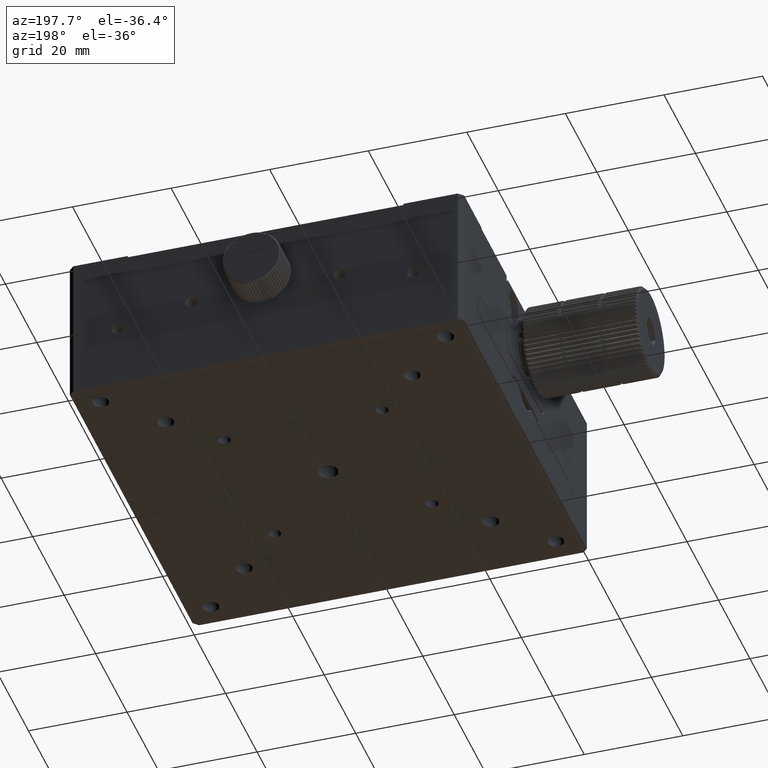
[diagram: clean part render]
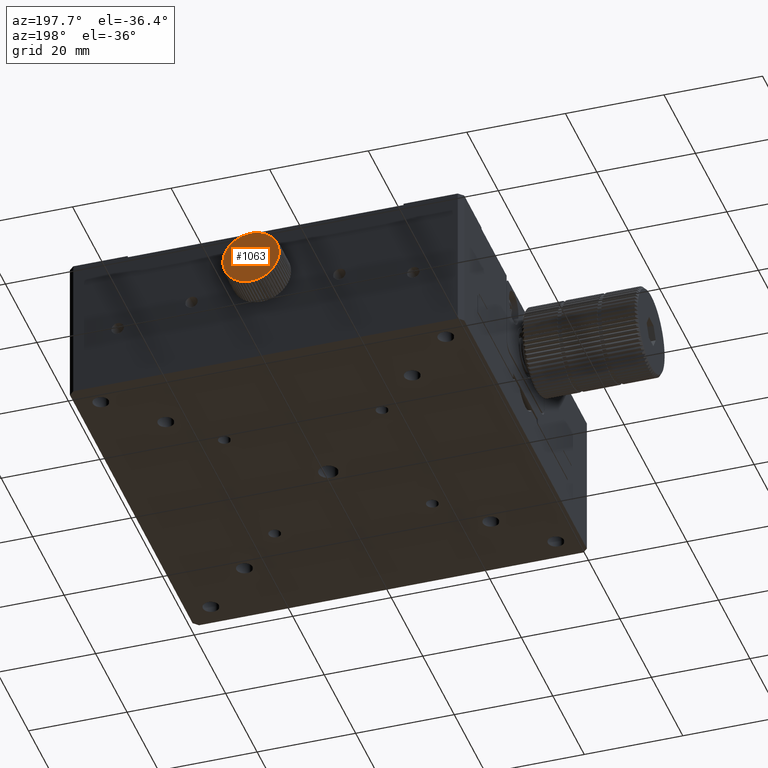
[diagram: same view with one face highlighted and labeled with its STEP entity id]
A machine part, auxiliary view. The second image highlights one B-rep face of the part: STEP entity #1063.
In plain terms, the highlighted planar face has unit normal (0, -1, -0).
Its self-contained STEP definition (entity closure, byte-faithful):
#15 = CARTESIAN_POINT ( 'NONE',  ( -3.295974604355933479E-14, 49.21547005369575345, 117.0000000000000142 ) ) ;
#40 = CIRCLE ( 'NONE', #73895, 5.700000000021077540 ) ;
#138 = ORIENTED_EDGE ( 'NONE', *, *, #67885, .F. ) ;
#441 = CARTESIAN_POINT ( 'NONE',  ( -3.295974604355933479E-14, 49.21547005369575345, 117.0000000000000142 ) ) ;
#475 = VERTEX_POINT ( 'NONE', #33123 ) ;
#776 = CARTESIAN_POINT ( 'NONE',  ( -2.850000000010580070, 49.21547005383691697, 112.0636551984104727 ) ) ;
#1063 = ADVANCED_FACE ( 'NONE', ( #55999 ), #22411, .F. ) ;
#1137 = EDGE_CURVE ( 'NONE', #20089, #19444, #70598, .T. ) ;
#1247 = VERTEX_POINT ( 'NONE', #43737 ) ;
#1286 = CARTESIAN_POINT ( 'NONE',  ( -3.295974604355933479E-14, 49.21547005369575345, 117.0000000000000142 ) ) ;
#1356 = CARTESIAN_POINT ( 'NONE',  ( -3.295974604355933479E-14, 49.21547005369575345, 117.0000000000000142 ) ) ;
#1431 = CARTESIAN_POINT ( 'NONE',  ( -1.185096637665645991, 49.21547005383691697, 111.4245586757967175 ) ) ;
#1480 = VERTEX_POINT ( 'NONE', #1431 ) ;
#1830 = CARTESIAN_POINT ( 'NONE',  ( -3.295974604355933479E-14, 49.21547005369575345, 117.0000000000000142 ) ) ;
#2011 = ORIENTED_EDGE ( 'NONE', *, *, #66572, .F. ) ;
#2190 = CIRCLE ( 'NONE', #52876, 5.700000000021077540 ) ;
#2241 = CARTESIAN_POINT ( 'NONE',  ( 1.761396867943604283, 49.21547005383691697, 111.5789778570975699 ) ) ;
#2316 = EDGE_CURVE ( 'NONE', #68036, #50976, #36948, .T. ) ;
#2616 = EDGE_CURVE ( 'NONE', #60832, #52253, #36997, .T. ) ;
#2804 = CIRCLE ( 'NONE', #15847, 5.700000000021077540 ) ;
#2825 = CARTESIAN_POINT ( 'NONE',  ( -4.936344801589581444, 49.21547005383691697, 114.1499999999894897 ) ) ;
#3027 = VERTEX_POINT ( 'NONE', #35831 ) ;
#3534 = CARTESIAN_POINT ( 'NONE',  ( -4.611396867954267620, 49.21547005383691697, 120.3503759380795373 ) ) ;
#3540 = VERTEX_POINT ( 'NONE', #84194 ) ;
#3661 = EDGE_CURVE ( 'NONE', #33772, #29005, #77681, .T. ) ;
#3873 = DIRECTION ( 'NONE',  ( 0.000000000000000000, -1.000000000000000000, 0.000000000000000000 ) ) ;
#4258 = VERTEX_POINT ( 'NONE', #5341 ) ;
#4641 = CIRCLE ( 'NONE', #7554, 5.700000000021077540 ) ;
#4800 = CARTESIAN_POINT ( 'NONE',  ( -3.295974604355933479E-14, 49.21547005369575345, 117.0000000000000142 ) ) ;
#4855 = DIRECTION ( 'NONE',  ( 0.000000000000000000, 0.000000000000000000, -1.000000000000000000 ) ) ;
#4999 = DIRECTION ( 'NONE',  ( 0.000000000000000000, 0.000000000000000000, -1.000000000000000000 ) ) ;
#5027 = AXIS2_PLACEMENT_3D ( 'NONE', #38844, #32032, #80095 ) ;
#5180 = CARTESIAN_POINT ( 'NONE',  ( -3.295974604355933479E-14, 49.21547005369575345, 117.0000000000000142 ) ) ;
#5341 = CARTESIAN_POINT ( 'NONE',  ( -5.421022142902465646, 49.21547005383691697, 115.2386031320563262 ) ) ;
#5958 = EDGE_LOOP ( 'NONE', ( #64832, #79781, #89134, #65612, #87406, #51672, #70289, #48681, #74099, #14855, #66999, #65947, #24735, #70253, #39059, #83210, #9593, #31207, #52139, #48653, #39106, #66420, #52746, #39293, #48898, #29490, #59251, #40221, #24063, #9944, #2011, #61209, #19017, #60717, #76765, #33267, #23488, #85706, #64948, #49008, #35555, #44732, #11385, #26327, #26124, #63445, #9382, #61115, #15510, #22226, #44771, #60814, #41838, #38951, #138, #23126, #33485, #26438, #39264, #80003 ) ) ;
#6506 = DIRECTION ( 'NONE',  ( 0.000000000000000000, -1.000000000000000000, 0.000000000000000000 ) ) ;
#6595 = CIRCLE ( 'NONE', #87737, 5.700000000021077540 ) ;
#6604 = CIRCLE ( 'NONE', #47259, 5.700000000021077540 ) ;
#6719 = DIRECTION ( 'NONE',  ( 0.000000000000000000, 0.000000000000000000, -1.000000000000000000 ) ) ;
#6887 = AXIS2_PLACEMENT_3D ( 'NONE', #441, #84772, #48979 ) ;
#6955 = CARTESIAN_POINT ( 'NONE',  ( -3.295974604355933479E-14, 49.21547005369575345, 117.0000000000000142 ) ) ;
#7554 = AXIS2_PLACEMENT_3D ( 'NONE', #28796, #56898, #19398 ) ;
#7813 = AXIS2_PLACEMENT_3D ( 'NONE', #84662, #22539, #28467 ) ;
#8016 = CARTESIAN_POINT ( 'NONE',  ( 5.575441324203262106, 49.21547005383691697, 115.8149033623343485 ) ) ;
#8035 = CARTESIAN_POINT ( 'NONE',  ( -3.295974604355933479E-14, 49.21547005369575345, 117.0000000000000142 ) ) ;
#8400 = AXIS2_PLACEMENT_3D ( 'NONE', #31204, #32093, #74238 ) ;
#8410 = EDGE_CURVE ( 'NONE', #4258, #28345, #2804, .T. ) ;
#8525 = DIRECTION ( 'NONE',  ( 0.000000000000000000, 0.000000000000000000, -1.000000000000000000 ) ) ;
#8588 = CIRCLE ( 'NONE', #33230, 5.700000000021077540 ) ;
#8676 = AXIS2_PLACEMENT_3D ( 'NONE', #81868, #34262, #76848 ) ;
#9134 = EDGE_CURVE ( 'NONE', #77552, #57588, #59338, .T. ) ;
#9344 = VERTEX_POINT ( 'NONE', #89758 ) ;
#9382 = ORIENTED_EDGE ( 'NONE', *, *, #70851, .F. ) ;
#9583 = EDGE_CURVE ( 'NONE', #78209, #56767, #40, .T. ) ;
#9593 = ORIENTED_EDGE ( 'NONE', *, *, #81758, .F. ) ;
#9720 = DIRECTION ( 'NONE',  ( 0.000000000000000000, -1.000000000000000000, 0.000000000000000000 ) ) ;
#9893 = AXIS2_PLACEMENT_3D ( 'NONE', #25477, #66324, #73082 ) ;
#9944 = ORIENTED_EDGE ( 'NONE', *, *, #2316, .F. ) ;
#10537 = CIRCLE ( 'NONE', #43865, 5.700000000021077540 ) ;
#10565 = DIRECTION ( 'NONE',  ( 0.000000000000000000, 0.000000000000000000, -1.000000000000000000 ) ) ;
#10606 = DIRECTION ( 'NONE',  ( 0.000000000000000000, 0.000000000000000000, -1.000000000000000000 ) ) ;
#10718 = CARTESIAN_POINT ( 'NONE',  ( -3.295974604355933479E-14, 49.21547005369575345, 117.0000000000000142 ) ) ;
#10730 = VERTEX_POINT ( 'NONE', #52983 ) ;
#11385 = ORIENTED_EDGE ( 'NONE', *, *, #82985, .F. ) ;
#11484 = CARTESIAN_POINT ( 'NONE',  ( -3.295974604355933479E-14, 49.21547005369575345, 117.0000000000000142 ) ) ;
#11909 = CARTESIAN_POINT ( 'NONE',  ( -3.295974604355933479E-14, 49.21547005369575345, 117.0000000000000142 ) ) ;
#12016 = CARTESIAN_POINT ( 'NONE',  ( 4.936344801589498843, 49.21547005383691697, 114.1499999999894328 ) ) ;
#12165 = EDGE_CURVE ( 'NONE', #64103, #68966, #26377, .T. ) ;
#12345 = DIRECTION ( 'NONE',  ( 0.000000000000000000, -1.000000000000000000, 0.000000000000000000 ) ) ;
#12406 = CARTESIAN_POINT ( 'NONE',  ( -3.295974604355933479E-14, 49.21547005369575345, 117.0000000000000142 ) ) ;
#12816 = EDGE_CURVE ( 'NONE', #1480, #26804, #4641, .T. ) ;
#13263 = EDGE_CURVE ( 'NONE', #68966, #20422, #39531, .T. ) ;
#13335 = CARTESIAN_POINT ( 'NONE',  ( -5.207209108582119939, 49.21547005383691697, 114.6816011344594131 ) ) ;
#13363 = DIRECTION ( 'NONE',  ( 0.000000000000000000, -1.000000000000000000, 0.000000000000000000 ) ) ;
#13388 = DIRECTION ( 'NONE',  ( 0.000000000000000000, -1.000000000000000000, 0.000000000000000000 ) ) ;
#13496 = EDGE_CURVE ( 'NONE', #57588, #20529, #10537, .T. ) ;
#13655 = AXIS2_PLACEMENT_3D ( 'NONE', #88954, #41346, #27272 ) ;
#13854 = CIRCLE ( 'NONE', #58577, 5.700000000021077540 ) ;
#13905 = AXIS2_PLACEMENT_3D ( 'NONE', #33472, #40726, #61130 ) ;
#14461 = DIRECTION ( 'NONE',  ( 0.000000000000000000, -1.000000000000000000, 0.000000000000000000 ) ) ;
#14673 = DIRECTION ( 'NONE',  ( 0.000000000000000000, -1.000000000000000000, 0.000000000000000000 ) ) ;
#14855 = ORIENTED_EDGE ( 'NONE', *, *, #71145, .F. ) ;
#14873 = DIRECTION ( 'NONE',  ( 0.000000000000000000, -1.000000000000000000, 0.000000000000000000 ) ) ;
#15089 = AXIS2_PLACEMENT_3D ( 'NONE', #15, #70767, #63075 ) ;
#15475 = VERTEX_POINT ( 'NONE', #27393 ) ;
#15510 = ORIENTED_EDGE ( 'NONE', *, *, #40482, .F. ) ;
#15725 = DIRECTION ( 'NONE',  ( 0.000000000000000000, -1.000000000000000000, 0.000000000000000000 ) ) ;
#15847 = AXIS2_PLACEMENT_3D ( 'NONE', #58862, #59290, #86936 ) ;
#15913 = EDGE_CURVE ( 'NONE', #25590, #20535, #86093, .T. ) ;
#16195 = AXIS2_PLACEMENT_3D ( 'NONE', #50983, #36068, #63739 ) ;
#16639 = EDGE_CURVE ( 'NONE', #69520, #60191, #2190, .T. ) ;
#16640 = CARTESIAN_POINT ( 'NONE',  ( -3.814044456259602089, 49.21547005383691697, 121.2359255052368354 ) ) ;
#16814 = CIRCLE ( 'NONE', #60265, 5.700000000021077540 ) ;
#17028 = CARTESIAN_POINT ( 'NONE',  ( 1.185096637665507213, 49.21547005383691697, 111.4245586757966890 ) ) ;
#17068 = CIRCLE ( 'NONE', #6887, 5.700000000021077540 ) ;
#17306 = EDGE_CURVE ( 'NONE', #24675, #52331, #18188, .T. ) ;
#17477 = CIRCLE ( 'NONE', #68210, 5.700000000021077540 ) ;
#18025 = VERTEX_POINT ( 'NONE', #24508 ) ;
#18188 = CIRCLE ( 'NONE', #29813, 5.700000000021077540 ) ;
#18500 = CARTESIAN_POINT ( 'NONE',  ( -2.318398865540638454, 49.21547005383691697, 122.2072091085821199 ) ) ;
#18790 = DIRECTION ( 'NONE',  ( 0.000000000000000000, 0.000000000000000000, -1.000000000000000000 ) ) ;
#18861 = CIRCLE ( 'NONE', #69570, 5.700000000021077540 ) ;
#19017 = ORIENTED_EDGE ( 'NONE', *, *, #3661, .F. ) ;
#19178 = DIRECTION ( 'NONE',  ( 0.000000000000000000, -1.000000000000000000, 0.000000000000000000 ) ) ;
#19335 = DIRECTION ( 'NONE',  ( 0.000000000000000000, 0.000000000000000000, -1.000000000000000000 ) ) ;
#19398 = DIRECTION ( 'NONE',  ( 0.000000000000000000, 0.000000000000000000, -1.000000000000000000 ) ) ;
#19444 = VERTEX_POINT ( 'NONE', #43092 ) ;
#19881 = CIRCLE ( 'NONE', #89433, 5.700000000021077540 ) ;
#20053 = CARTESIAN_POINT ( 'NONE',  ( -3.295974604355933479E-14, 49.21547005369575345, 117.0000000000000142 ) ) ;
#20089 = VERTEX_POINT ( 'NONE', #2825 ) ;
#20212 = AXIS2_PLACEMENT_3D ( 'NONE', #33576, #88879, #60780 ) ;
#20300 = CIRCLE ( 'NONE', #78253, 5.700000000021077540 ) ;
#20330 = CARTESIAN_POINT ( 'NONE',  ( -3.295974604355933479E-14, 49.21547005369575345, 117.0000000000000142 ) ) ;
#20422 = VERTEX_POINT ( 'NONE', #61918 ) ;
#20529 = VERTEX_POINT ( 'NONE', #41519 ) ;
#20535 = VERTEX_POINT ( 'NONE', #21516 ) ;
#20689 = VERTEX_POINT ( 'NONE', #38704 ) ;
#20747 = EDGE_CURVE ( 'NONE', #3027, #15475, #70380, .T. ) ;
#20970 = AXIS2_PLACEMENT_3D ( 'NONE', #42584, #70241, #76128 ) ;
#21124 = CIRCLE ( 'NONE', #41435, 5.700000000021077540 ) ;
#21516 = CARTESIAN_POINT ( 'NONE',  ( 4.611396867954184131, 49.21547005383691697, 113.6496240619204912 ) ) ;
#21868 = AXIS2_PLACEMENT_3D ( 'NONE', #11484, #81789, #54594 ) ;
#22106 = DIRECTION ( 'NONE',  ( 0.000000000000000000, 0.000000000000000000, -1.000000000000000000 ) ) ;
#22148 = DIRECTION ( 'NONE',  ( 0.000000000000000000, 0.000000000000000000, -1.000000000000000000 ) ) ;
#22226 = ORIENTED_EDGE ( 'NONE', *, *, #45267, .F. ) ;
#22411 = PLANE ( 'NONE',  #87859 ) ;
#22525 = CARTESIAN_POINT ( 'NONE',  ( -1.761396867943749944, 49.21547005383691697, 111.5789778570975983 ) ) ;
#22539 = DIRECTION ( 'NONE',  ( 0.000000000000000000, -1.000000000000000000, 0.000000000000000000 ) ) ;
#22552 = AXIS2_PLACEMENT_3D ( 'NONE', #60448, #39142, #25535 ) ;
#22799 = VERTEX_POINT ( 'NONE', #68473 ) ;
#23056 = CARTESIAN_POINT ( 'NONE',  ( -4.936344801589568121, 49.21547005383691697, 119.8500000000105814 ) ) ;
#23126 = ORIENTED_EDGE ( 'NONE', *, *, #29737, .F. ) ;
#23280 = CARTESIAN_POINT ( 'NONE',  ( -3.295974604355933479E-14, 49.21547005369575345, 117.0000000000000142 ) ) ;
#23488 = ORIENTED_EDGE ( 'NONE', *, *, #63216, .F. ) ;
#23592 = VERTEX_POINT ( 'NONE', #34678 ) ;
#24063 = ORIENTED_EDGE ( 'NONE', *, *, #80438, .F. ) ;
#24299 = DIRECTION ( 'NONE',  ( 0.000000000000000000, 0.000000000000000000, -1.000000000000000000 ) ) ;
#24399 = EDGE_CURVE ( 'NONE', #71321, #1480, #64503, .T. ) ;
#24508 = CARTESIAN_POINT ( 'NONE',  ( -3.350375938079519500, 49.21547005383691697, 112.3886031320457732 ) ) ;
#24624 = CARTESIAN_POINT ( 'NONE',  ( -3.295974604355933479E-14, 49.21547005369575345, 117.0000000000000142 ) ) ;
#24675 = VERTEX_POINT ( 'NONE', #30530 ) ;
#24735 = ORIENTED_EDGE ( 'NONE', *, *, #8410, .F. ) ;
#24789 = DIRECTION ( 'NONE',  ( 0.000000000000000000, -1.000000000000000000, 0.000000000000000000 ) ) ;
#24931 = CIRCLE ( 'NONE', #61154, 5.700000000021077540 ) ;
#25297 = AXIS2_PLACEMENT_3D ( 'NONE', #12406, #79536, #10606 ) ;
#25439 = CARTESIAN_POINT ( 'NONE',  ( -3.295974604355933479E-14, 49.21547005369575345, 117.0000000000000142 ) ) ;
#25477 = CARTESIAN_POINT ( 'NONE',  ( -3.295974604355933479E-14, 49.21547005369575345, 117.0000000000000142 ) ) ;
#25535 = DIRECTION ( 'NONE',  ( 0.000000000000000000, 0.000000000000000000, -1.000000000000000000 ) ) ;
#25590 = VERTEX_POINT ( 'NONE', #57526 ) ;
#25640 = CARTESIAN_POINT ( 'NONE',  ( -3.295974604355933479E-14, 49.21547005369575345, 117.0000000000000142 ) ) ;
#25895 = CARTESIAN_POINT ( 'NONE',  ( -3.295974604355933479E-14, 49.21547005369575345, 117.0000000000000142 ) ) ;
#25899 = VERTEX_POINT ( 'NONE', #17028 ) ;
#25972 = AXIS2_PLACEMENT_3D ( 'NONE', #34210, #14673, #82696 ) ;
#26124 = ORIENTED_EDGE ( 'NONE', *, *, #63052, .F. ) ;
#26210 = CARTESIAN_POINT ( 'NONE',  ( -3.295974604355933479E-14, 49.21547005369575345, 117.0000000000000142 ) ) ;
#26327 = ORIENTED_EDGE ( 'NONE', *, *, #33279, .F. ) ;
#26377 = CIRCLE ( 'NONE', #84288, 5.700000000021077540 ) ;
#26438 = ORIENTED_EDGE ( 'NONE', *, *, #36044, .F. ) ;
#26698 = DIRECTION ( 'NONE',  ( 0.000000000000000000, 0.000000000000000000, -1.000000000000000000 ) ) ;
#26798 = VERTEX_POINT ( 'NONE', #18500 ) ;
#26804 = VERTEX_POINT ( 'NONE', #40285 ) ;
#26984 = CARTESIAN_POINT ( 'NONE',  ( -3.295974604355933479E-14, 49.21547005369575345, 117.0000000000000142 ) ) ;
#27123 = CARTESIAN_POINT ( 'NONE',  ( -3.295974604355933479E-14, 49.21547005369575345, 117.0000000000000142 ) ) ;
#27272 = DIRECTION ( 'NONE',  ( 0.000000000000000000, 0.000000000000000000, -1.000000000000000000 ) ) ;
#27393 = CARTESIAN_POINT ( 'NONE',  ( -5.575441324203344706, 49.21547005383691697, 115.8149033623344337 ) ) ;
#27472 = DIRECTION ( 'NONE',  ( 0.000000000000000000, 0.000000000000000000, -1.000000000000000000 ) ) ;
#27728 = AXIS2_PLACEMENT_3D ( 'NONE', #75506, #13388, #41078 ) ;
#28111 = EDGE_CURVE ( 'NONE', #56767, #57145, #29844, .T. ) ;
#28345 = VERTEX_POINT ( 'NONE', #13335 ) ;
#28467 = DIRECTION ( 'NONE',  ( 0.000000000000000000, 0.000000000000000000, -1.000000000000000000 ) ) ;
#28565 = DIRECTION ( 'NONE',  ( 0.000000000000000000, -1.000000000000000000, 0.000000000000000000 ) ) ;
#28751 = DIRECTION ( 'NONE',  ( 0.000000000000000000, 0.000000000000000000, -1.000000000000000000 ) ) ;
#28781 = DIRECTION ( 'NONE',  ( 2.428612866367531781E-17, -1.000000000000000000, -5.551115123125783935E-17 ) ) ;
#28796 = CARTESIAN_POINT ( 'NONE',  ( -3.295974604355933479E-14, 49.21547005369575345, 117.0000000000000142 ) ) ;
#29005 = VERTEX_POINT ( 'NONE', #68585 ) ;
#29044 = AXIS2_PLACEMENT_3D ( 'NONE', #45293, #47079, #86958 ) ;
#29490 = ORIENTED_EDGE ( 'NONE', *, *, #47108, .F. ) ;
#29669 = DIRECTION ( 'NONE',  ( 0.000000000000000000, -1.000000000000000000, 0.000000000000000000 ) ) ;
#29737 = EDGE_CURVE ( 'NONE', #70319, #82440, #38786, .T. ) ;
#29813 = AXIS2_PLACEMENT_3D ( 'NONE', #23280, #29669, #43287 ) ;
#29844 = CIRCLE ( 'NONE', #80500, 5.700000000021077540 ) ;
#30010 = DIRECTION ( 'NONE',  ( 0.000000000000000000, -1.000000000000000000, 0.000000000000000000 ) ) ;
#30339 = AXIS2_PLACEMENT_3D ( 'NONE', #88997, #12345, #45951 ) ;
#30377 = CARTESIAN_POINT ( 'NONE',  ( -3.295974604355933479E-14, 49.21547005369575345, 117.0000000000000142 ) ) ;
#30530 = CARTESIAN_POINT ( 'NONE',  ( 5.700000000021049118, 49.21547005383691697, 116.9999999999999716 ) ) ;
#30533 = EDGE_CURVE ( 'NONE', #26804, #20689, #38922, .T. ) ;
#31204 = CARTESIAN_POINT ( 'NONE',  ( -3.295974604355933479E-14, 49.21547005369575345, 117.0000000000000142 ) ) ;
#31207 = ORIENTED_EDGE ( 'NONE', *, *, #69368, .F. ) ;
#31234 = CARTESIAN_POINT ( 'NONE',  ( -3.295974604355933479E-14, 49.21547005369575345, 117.0000000000000142 ) ) ;
#31336 = EDGE_CURVE ( 'NONE', #10730, #65912, #31793, .T. ) ;
#31352 = DIRECTION ( 'NONE',  ( 0.000000000000000000, 0.000000000000000000, -1.000000000000000000 ) ) ;
#31500 = EDGE_CURVE ( 'NONE', #65912, #33772, #8588, .T. ) ;
#31541 = CARTESIAN_POINT ( 'NONE',  ( 2.850000000010441514, 49.21547005383691697, 112.0636551984104301 ) ) ;
#31565 = CARTESIAN_POINT ( 'NONE',  ( -0.5958122406278243410, 49.21547005383691697, 122.6687748036201526 ) ) ;
#31793 = CIRCLE ( 'NONE', #25972, 5.700000000021077540 ) ;
#32032 = DIRECTION ( 'NONE',  ( 0.000000000000000000, -1.000000000000000000, 0.000000000000000000 ) ) ;
#32035 = CIRCLE ( 'NONE', #21868, 5.700000000021077540 ) ;
#32093 = DIRECTION ( 'NONE',  ( 0.000000000000000000, -1.000000000000000000, 0.000000000000000000 ) ) ;
#32188 = AXIS2_PLACEMENT_3D ( 'NONE', #88389, #82917, #53928 ) ;
#33025 = DIRECTION ( 'NONE',  ( 0.000000000000000000, -1.000000000000000000, 0.000000000000000000 ) ) ;
#33123 = CARTESIAN_POINT ( 'NONE',  ( -5.668774803620143743, 49.21547005383691697, 117.5958122406278790 ) ) ;
#33230 = AXIS2_PLACEMENT_3D ( 'NONE', #58949, #73881, #86588 ) ;
#33267 = ORIENTED_EDGE ( 'NONE', *, *, #60918, .F. ) ;
#33279 = EDGE_CURVE ( 'NONE', #45441, #46556, #20300, .T. ) ;
#33393 = CARTESIAN_POINT ( 'NONE',  ( -4.235925505236839861, 49.21547005383691697, 113.1859555437404339 ) ) ;
#33472 = CARTESIAN_POINT ( 'NONE',  ( -3.295974604355933479E-14, 49.21547005369575345, 117.0000000000000142 ) ) ;
#33485 = ORIENTED_EDGE ( 'NONE', *, *, #37062, .F. ) ;
#33492 = DIRECTION ( 'NONE',  ( 0.000000000000000000, -1.000000000000000000, 0.000000000000000000 ) ) ;
#33563 = CIRCLE ( 'NONE', #16195, 5.700000000021077540 ) ;
#33576 = CARTESIAN_POINT ( 'NONE',  ( -3.295974604355933479E-14, 49.21547005369575345, 117.0000000000000142 ) ) ;
#33772 = VERTEX_POINT ( 'NONE', #68370 ) ;
#34210 = CARTESIAN_POINT ( 'NONE',  ( -3.295974604355933479E-14, 49.21547005369575345, 117.0000000000000142 ) ) ;
#34245 = DIRECTION ( 'NONE',  ( 0.000000000000000000, -1.000000000000000000, 0.000000000000000000 ) ) ;
#34262 = DIRECTION ( 'NONE',  ( 0.000000000000000000, -1.000000000000000000, 0.000000000000000000 ) ) ;
#34610 = CARTESIAN_POINT ( 'NONE',  ( -2.318398865540673093, 49.21547005383691697, 111.7927908914179369 ) ) ;
#34678 = CARTESIAN_POINT ( 'NONE',  ( -5.575441324203344706, 49.21547005383691697, 118.1850966376656515 ) ) ;
#35555 = ORIENTED_EDGE ( 'NONE', *, *, #79430, .F. ) ;
#35638 = AXIS2_PLACEMENT_3D ( 'NONE', #31234, #57982, #59317 ) ;
#35831 = CARTESIAN_POINT ( 'NONE',  ( -5.668774803620157954, 49.21547005383691697, 116.4041877593722063 ) ) ;
#36044 = EDGE_CURVE ( 'NONE', #52898, #41981, #42380, .T. ) ;
#36050 = CARTESIAN_POINT ( 'NONE',  ( -3.295974604355933479E-14, 49.21547005369575345, 117.0000000000000142 ) ) ;
#36068 = DIRECTION ( 'NONE',  ( 0.000000000000000000, -1.000000000000000000, 0.000000000000000000 ) ) ;
#36897 = DIRECTION ( 'NONE',  ( 0.000000000000000000, -1.000000000000000000, 0.000000000000000000 ) ) ;
#36948 = CIRCLE ( 'NONE', #71687, 5.700000000021077540 ) ;
#36997 = CIRCLE ( 'NONE', #22552, 5.700000000021077540 ) ;
#37062 = EDGE_CURVE ( 'NONE', #41981, #70319, #77182, .T. ) ;
#37251 = CARTESIAN_POINT ( 'NONE',  ( -3.295974604355933479E-14, 49.21547005369575345, 117.0000000000000142 ) ) ;
#37653 = DIRECTION ( 'NONE',  ( 0.000000000000000000, -1.000000000000000000, 0.000000000000000000 ) ) ;
#37705 = CARTESIAN_POINT ( 'NONE',  ( 2.318398865540534537, 49.21547005383691697, 111.7927908914179085 ) ) ;
#37816 = DIRECTION ( 'NONE',  ( 0.000000000000000000, -1.000000000000000000, 0.000000000000000000 ) ) ;
#38082 = AXIS2_PLACEMENT_3D ( 'NONE', #1286, #78808, #22148 ) ;
#38704 = CARTESIAN_POINT ( 'NONE',  ( -3.295974604356276161E-14, 49.21547005383691697, 111.2999999999789367 ) ) ;
#38786 = CIRCLE ( 'NONE', #8400, 5.700000000021077540 ) ;
#38844 = CARTESIAN_POINT ( 'NONE',  ( -3.295974604355933479E-14, 49.21547005369575345, 117.0000000000000142 ) ) ;
#38922 = CIRCLE ( 'NONE', #77948, 5.700000000021077540 ) ;
#38951 = ORIENTED_EDGE ( 'NONE', *, *, #85029, .F. ) ;
#39059 = ORIENTED_EDGE ( 'NONE', *, *, #20747, .F. ) ;
#39106 = ORIENTED_EDGE ( 'NONE', *, *, #9134, .F. ) ;
#39142 = DIRECTION ( 'NONE',  ( 0.000000000000000000, -1.000000000000000000, 0.000000000000000000 ) ) ;
#39264 = ORIENTED_EDGE ( 'NONE', *, *, #83218, .F. ) ;
#39293 = ORIENTED_EDGE ( 'NONE', *, *, #28111, .F. ) ;
#39442 = EDGE_CURVE ( 'NONE', #20529, #23592, #74516, .T. ) ;
#39521 = DIRECTION ( 'NONE',  ( 0.000000000000000000, -1.000000000000000000, 0.000000000000000000 ) ) ;
#39531 = CIRCLE ( 'NONE', #48240, 5.700000000021077540 ) ;
#39624 = DIRECTION ( 'NONE',  ( 0.000000000000000000, 0.000000000000000000, -1.000000000000000000 ) ) ;
#40221 = ORIENTED_EDGE ( 'NONE', *, *, #62658, .F. ) ;
#40285 = CARTESIAN_POINT ( 'NONE',  ( -0.5958122406278625327, 49.21547005383691697, 111.3312251963799042 ) ) ;
#40396 = CARTESIAN_POINT ( 'NONE',  ( -3.814044456259630067, 49.21547005383691697, 112.7640744947632072 ) ) ;
#40482 = EDGE_CURVE ( 'NONE', #69835, #64051, #73145, .T. ) ;
#40675 = DIRECTION ( 'NONE',  ( 0.000000000000000000, -1.000000000000000000, 0.000000000000000000 ) ) ;
#40726 = DIRECTION ( 'NONE',  ( 0.000000000000000000, -1.000000000000000000, 0.000000000000000000 ) ) ;
#40739 = VERTEX_POINT ( 'NONE', #47932 ) ;
#41078 = DIRECTION ( 'NONE',  ( 0.000000000000000000, 0.000000000000000000, -1.000000000000000000 ) ) ;
#41218 = EDGE_CURVE ( 'NONE', #28345, #20089, #13854, .T. ) ;
#41264 = AXIS2_PLACEMENT_3D ( 'NONE', #57081, #63014, #84732 ) ;
#41346 = DIRECTION ( 'NONE',  ( 0.000000000000000000, -1.000000000000000000, 0.000000000000000000 ) ) ;
#41423 = CARTESIAN_POINT ( 'NONE',  ( 5.668774803620088676, 49.21547005383691697, 117.5958122406277937 ) ) ;
#41435 = AXIS2_PLACEMENT_3D ( 'NONE', #69758, #14873, #26698 ) ;
#41519 = CARTESIAN_POINT ( 'NONE',  ( -5.421022142902451435, 49.21547005383691697, 118.7613968679437448 ) ) ;
#41775 = DIRECTION ( 'NONE',  ( 0.000000000000000000, -1.000000000000000000, 0.000000000000000000 ) ) ;
#41838 = ORIENTED_EDGE ( 'NONE', *, *, #15913, .F. ) ;
#41949 = DIRECTION ( 'NONE',  ( 0.000000000000000000, 5.551115123125783935E-17, -1.000000000000000000 ) ) ;
#41981 = VERTEX_POINT ( 'NONE', #37705 ) ;
#42223 = CIRCLE ( 'NONE', #56646, 5.700000000021077540 ) ;
#42380 = CIRCLE ( 'NONE', #32188, 5.700000000021077540 ) ;
#42584 = CARTESIAN_POINT ( 'NONE',  ( -3.295974604355933479E-14, 49.21547005369575345, 117.0000000000000142 ) ) ;
#42750 = CARTESIAN_POINT ( 'NONE',  ( -5.700000000021105073, 49.21547005383691697, 117.0000000000000284 ) ) ;
#42825 = CARTESIAN_POINT ( 'NONE',  ( -3.295974604355933479E-14, 49.21547005369575345, 117.0000000000000142 ) ) ;
#43092 = CARTESIAN_POINT ( 'NONE',  ( -4.611396867954295153, 49.21547005383691697, 113.6496240619205480 ) ) ;
#43287 = DIRECTION ( 'NONE',  ( 0.000000000000000000, 0.000000000000000000, -1.000000000000000000 ) ) ;
#43334 = DIRECTION ( 'NONE',  ( 0.000000000000000000, 0.000000000000000000, -1.000000000000000000 ) ) ;
#43415 = DIRECTION ( 'NONE',  ( 0.000000000000000000, 0.000000000000000000, -1.000000000000000000 ) ) ;
#43425 = CARTESIAN_POINT ( 'NONE',  ( -3.295974604355933479E-14, 49.21547005369575345, 117.0000000000000142 ) ) ;
#43737 = CARTESIAN_POINT ( 'NONE',  ( -1.761396867943715305, 49.21547005383691697, 122.4210221429024585 ) ) ;
#43865 = AXIS2_PLACEMENT_3D ( 'NONE', #25640, #13363, #46505 ) ;
#44304 = CIRCLE ( 'NONE', #35638, 5.700000000021077540 ) ;
#44670 = CARTESIAN_POINT ( 'NONE',  ( -3.295974604355933479E-14, 49.21547005369575345, 117.0000000000000142 ) ) ;
#44732 = ORIENTED_EDGE ( 'NONE', *, *, #67371, .F. ) ;
#44771 = ORIENTED_EDGE ( 'NONE', *, *, #56377, .F. ) ;
#44776 = CARTESIAN_POINT ( 'NONE',  ( 4.611396867954253409, 49.21547005383691697, 120.3503759380794520 ) ) ;
#45158 = CIRCLE ( 'NONE', #27728, 5.700000000021077540 ) ;
#45267 = EDGE_CURVE ( 'NONE', #50036, #69835, #66854, .T. ) ;
#45293 = CARTESIAN_POINT ( 'NONE',  ( -3.295974604355933479E-14, 49.21547005369575345, 117.0000000000000142 ) ) ;
#45441 = VERTEX_POINT ( 'NONE', #85639 ) ;
#45445 = CARTESIAN_POINT ( 'NONE',  ( 3.350375938079408478, 49.21547005383691697, 112.3886031320457448 ) ) ;
#45951 = DIRECTION ( 'NONE',  ( 0.000000000000000000, 0.000000000000000000, -1.000000000000000000 ) ) ;
#46505 = DIRECTION ( 'NONE',  ( 0.000000000000000000, 0.000000000000000000, -1.000000000000000000 ) ) ;
#46556 = VERTEX_POINT ( 'NONE', #47642 ) ;
#46608 = EDGE_CURVE ( 'NONE', #18025, #60832, #17477, .T. ) ;
#46968 = DIRECTION ( 'NONE',  ( 0.000000000000000000, 0.000000000000000000, -1.000000000000000000 ) ) ;
#47078 = CIRCLE ( 'NONE', #25297, 5.700000000021077540 ) ;
#47079 = DIRECTION ( 'NONE',  ( 0.000000000000000000, -1.000000000000000000, 0.000000000000000000 ) ) ;
#47108 = EDGE_CURVE ( 'NONE', #22799, #78209, #75485, .T. ) ;
#47259 = AXIS2_PLACEMENT_3D ( 'NONE', #30377, #79764, #51669 ) ;
#47642 = CARTESIAN_POINT ( 'NONE',  ( 5.421022142902409691, 49.21547005383691697, 118.7613968679436738 ) ) ;
#47737 = DIRECTION ( 'NONE',  ( 0.000000000000000000, -1.000000000000000000, 0.000000000000000000 ) ) ;
#47795 = EDGE_CURVE ( 'NONE', #57145, #60560, #33563, .T. ) ;
#47932 = CARTESIAN_POINT ( 'NONE',  ( 3.814044456259519045, 49.21547005383691697, 112.7640744947631646 ) ) ;
#47976 = AXIS2_PLACEMENT_3D ( 'NONE', #72868, #40675, #48805 ) ;
#47981 = AXIS2_PLACEMENT_3D ( 'NONE', #4800, #24789, #19335 ) ;
#48096 = DIRECTION ( 'NONE',  ( 0.000000000000000000, -1.000000000000000000, 0.000000000000000000 ) ) ;
#48240 = AXIS2_PLACEMENT_3D ( 'NONE', #25439, #39521, #4999 ) ;
#48653 = ORIENTED_EDGE ( 'NONE', *, *, #13496, .F. ) ;
#48681 = ORIENTED_EDGE ( 'NONE', *, *, #74711, .F. ) ;
#48805 = DIRECTION ( 'NONE',  ( 0.000000000000000000, 0.000000000000000000, -1.000000000000000000 ) ) ;
#48898 = ORIENTED_EDGE ( 'NONE', *, *, #9583, .F. ) ;
#48979 = DIRECTION ( 'NONE',  ( 0.000000000000000000, 0.000000000000000000, -1.000000000000000000 ) ) ;
#49008 = ORIENTED_EDGE ( 'NONE', *, *, #54360, .F. ) ;
#49547 = CIRCLE ( 'NONE', #72694, 5.700000000021077540 ) ;
#49784 = AXIS2_PLACEMENT_3D ( 'NONE', #43425, #89673, #55210 ) ;
#49969 = AXIS2_PLACEMENT_3D ( 'NONE', #6955, #6506, #18790 ) ;
#50036 = VERTEX_POINT ( 'NONE', #55264 ) ;
#50187 = VERTEX_POINT ( 'NONE', #85164 ) ;
#50273 = CARTESIAN_POINT ( 'NONE',  ( -3.295974604355933479E-14, 49.21547005369575345, 117.0000000000000142 ) ) ;
#50694 = EDGE_CURVE ( 'NONE', #51194, #3027, #19881, .T. ) ;
#50717 = AXIS2_PLACEMENT_3D ( 'NONE', #57879, #15725, #43415 ) ;
#50976 = VERTEX_POINT ( 'NONE', #74952 ) ;
#50983 = CARTESIAN_POINT ( 'NONE',  ( -3.295974604355933479E-14, 49.21547005369575345, 117.0000000000000142 ) ) ;
#51194 = VERTEX_POINT ( 'NONE', #42750 ) ;
#51522 = CARTESIAN_POINT ( 'NONE',  ( -3.295974604355933479E-14, 49.21547005369575345, 117.0000000000000142 ) ) ;
#51669 = DIRECTION ( 'NONE',  ( 0.000000000000000000, 0.000000000000000000, -1.000000000000000000 ) ) ;
#51672 = ORIENTED_EDGE ( 'NONE', *, *, #2616, .F. ) ;
#52139 = ORIENTED_EDGE ( 'NONE', *, *, #39442, .F. ) ;
#52253 = VERTEX_POINT ( 'NONE', #34610 ) ;
#52331 = VERTEX_POINT ( 'NONE', #41423 ) ;
#52746 = ORIENTED_EDGE ( 'NONE', *, *, #47795, .F. ) ;
#52876 = AXIS2_PLACEMENT_3D ( 'NONE', #5180, #53716, #60536 ) ;
#52898 = VERTEX_POINT ( 'NONE', #2241 ) ;
#52983 = CARTESIAN_POINT ( 'NONE',  ( 2.318398865540638454, 49.21547005383691697, 122.2072091085821057 ) ) ;
#53716 = DIRECTION ( 'NONE',  ( 0.000000000000000000, -1.000000000000000000, 0.000000000000000000 ) ) ;
#53815 = AXIS2_PLACEMENT_3D ( 'NONE', #42825, #36897, #28751 ) ;
#53928 = DIRECTION ( 'NONE',  ( 0.000000000000000000, 0.000000000000000000, -1.000000000000000000 ) ) ;
#54101 = CARTESIAN_POINT ( 'NONE',  ( -3.295974604355933479E-14, 49.21547005369575345, 117.0000000000000142 ) ) ;
#54259 = CIRCLE ( 'NONE', #5027, 5.700000000021077540 ) ;
#54341 = DIRECTION ( 'NONE',  ( 0.000000000000000000, 0.000000000000000000, -1.000000000000000000 ) ) ;
#54360 = EDGE_CURVE ( 'NONE', #88269, #64103, #6604, .T. ) ;
#54594 = DIRECTION ( 'NONE',  ( 0.000000000000000000, 0.000000000000000000, -1.000000000000000000 ) ) ;
#54639 = AXIS2_PLACEMENT_3D ( 'NONE', #11909, #65928, #39624 ) ;
#54862 = CARTESIAN_POINT ( 'NONE',  ( 1.761396867943722189, 49.21547005383691697, 122.4210221429024443 ) ) ;
#55210 = DIRECTION ( 'NONE',  ( 0.000000000000000000, 0.000000000000000000, -1.000000000000000000 ) ) ;
#55215 = CIRCLE ( 'NONE', #87038, 5.700000000021077540 ) ;
#55264 = CARTESIAN_POINT ( 'NONE',  ( 5.207209108582022239, 49.21547005383691697, 114.6816011344593278 ) ) ;
#55603 = CIRCLE ( 'NONE', #49784, 5.700000000021077540 ) ;
#55942 = CIRCLE ( 'NONE', #13905, 5.700000000021077540 ) ;
#55999 = FACE_OUTER_BOUND ( 'NONE', #5958, .T. ) ;
#56377 = EDGE_CURVE ( 'NONE', #61269, #50036, #6595, .T. ) ;
#56645 = EDGE_CURVE ( 'NONE', #52253, #71321, #21124, .T. ) ;
#56646 = AXIS2_PLACEMENT_3D ( 'NONE', #44670, #9720, #43334 ) ;
#56767 = VERTEX_POINT ( 'NONE', #16640 ) ;
#56898 = DIRECTION ( 'NONE',  ( 0.000000000000000000, -1.000000000000000000, 0.000000000000000000 ) ) ;
#57070 = EDGE_CURVE ( 'NONE', #20689, #50187, #24931, .T. ) ;
#57081 = CARTESIAN_POINT ( 'NONE',  ( -3.295974604355933479E-14, 49.21547005369575345, 117.0000000000000142 ) ) ;
#57145 = VERTEX_POINT ( 'NONE', #61504 ) ;
#57526 = CARTESIAN_POINT ( 'NONE',  ( 4.235925505236743049, 49.21547005383691697, 113.1859555437403628 ) ) ;
#57588 = VERTEX_POINT ( 'NONE', #72743 ) ;
#57879 = CARTESIAN_POINT ( 'NONE',  ( -3.295974604355933479E-14, 49.21547005369575345, 117.0000000000000142 ) ) ;
#57982 = DIRECTION ( 'NONE',  ( 0.000000000000000000, -1.000000000000000000, 0.000000000000000000 ) ) ;
#58577 = AXIS2_PLACEMENT_3D ( 'NONE', #26984, #34245, #68708 ) ;
#58862 = CARTESIAN_POINT ( 'NONE',  ( -3.295974604355933479E-14, 49.21547005369575345, 117.0000000000000142 ) ) ;
#58949 = CARTESIAN_POINT ( 'NONE',  ( -3.295974604355933479E-14, 49.21547005369575345, 117.0000000000000142 ) ) ;
#59251 = ORIENTED_EDGE ( 'NONE', *, *, #67900, .F. ) ;
#59290 = DIRECTION ( 'NONE',  ( 0.000000000000000000, -1.000000000000000000, 0.000000000000000000 ) ) ;
#59317 = DIRECTION ( 'NONE',  ( 0.000000000000000000, 0.000000000000000000, -1.000000000000000000 ) ) ;
#59338 = CIRCLE ( 'NONE', #20212, 5.700000000021077540 ) ;
#59572 = AXIS2_PLACEMENT_3D ( 'NONE', #27123, #33492, #54341 ) ;
#60191 = VERTEX_POINT ( 'NONE', #40396 ) ;
#60265 = AXIS2_PLACEMENT_3D ( 'NONE', #68536, #48096, #76200 ) ;
#60448 = CARTESIAN_POINT ( 'NONE',  ( -3.295974604355933479E-14, 49.21547005369575345, 117.0000000000000142 ) ) ;
#60463 = EDGE_CURVE ( 'NONE', #20535, #61269, #61469, .T. ) ;
#60464 = CIRCLE ( 'NONE', #54639, 5.700000000021077540 ) ;
#60536 = DIRECTION ( 'NONE',  ( 0.000000000000000000, 0.000000000000000000, -1.000000000000000000 ) ) ;
#60560 = VERTEX_POINT ( 'NONE', #3534 ) ;
#60717 = ORIENTED_EDGE ( 'NONE', *, *, #31500, .F. ) ;
#60780 = DIRECTION ( 'NONE',  ( 0.000000000000000000, 0.000000000000000000, -1.000000000000000000 ) ) ;
#60806 = DIRECTION ( 'NONE',  ( 0.000000000000000000, -1.000000000000000000, 0.000000000000000000 ) ) ;
#60814 = ORIENTED_EDGE ( 'NONE', *, *, #60463, .F. ) ;
#60832 = VERTEX_POINT ( 'NONE', #776 ) ;
#60918 = EDGE_CURVE ( 'NONE', #3540, #10730, #69577, .T. ) ;
#61115 = ORIENTED_EDGE ( 'NONE', *, *, #73875, .F. ) ;
#61130 = DIRECTION ( 'NONE',  ( 0.000000000000000000, 0.000000000000000000, -1.000000000000000000 ) ) ;
#61154 = AXIS2_PLACEMENT_3D ( 'NONE', #10718, #89154, #27472 ) ;
#61179 = CARTESIAN_POINT ( 'NONE',  ( -3.295974604355590167E-14, 49.21547005383691697, 122.7000000000210918 ) ) ;
#61209 = ORIENTED_EDGE ( 'NONE', *, *, #87744, .F. ) ;
#61269 = VERTEX_POINT ( 'NONE', #12016 ) ;
#61469 = CIRCLE ( 'NONE', #84623, 5.700000000021077540 ) ;
#61504 = CARTESIAN_POINT ( 'NONE',  ( -4.235925505236826538, 49.21547005383691697, 120.8140444562596514 ) ) ;
#61918 = CARTESIAN_POINT ( 'NONE',  ( 3.350375938079491966, 49.21547005383691697, 121.6113968679542410 ) ) ;
#61920 = EDGE_CURVE ( 'NONE', #60560, #77552, #66529, .T. ) ;
#62658 = EDGE_CURVE ( 'NONE', #1247, #26798, #86872, .T. ) ;
#63014 = DIRECTION ( 'NONE',  ( 0.000000000000000000, -1.000000000000000000, 0.000000000000000000 ) ) ;
#63052 = EDGE_CURVE ( 'NONE', #52331, #45441, #86932, .T. ) ;
#63075 = DIRECTION ( 'NONE',  ( 0.000000000000000000, 0.000000000000000000, -1.000000000000000000 ) ) ;
#63216 = EDGE_CURVE ( 'NONE', #20422, #3540, #18861, .T. ) ;
#63270 = CARTESIAN_POINT ( 'NONE',  ( 5.684885125474600009, 49.21547005383691697, 118.9188749594898979 ) ) ;
#63445 = ORIENTED_EDGE ( 'NONE', *, *, #17306, .F. ) ;
#63525 = CARTESIAN_POINT ( 'NONE',  ( -3.295974604355933479E-14, 49.21547005369575345, 117.0000000000000142 ) ) ;
#63716 = DIRECTION ( 'NONE',  ( 0.000000000000000000, -1.000000000000000000, 0.000000000000000000 ) ) ;
#63739 = DIRECTION ( 'NONE',  ( 0.000000000000000000, 0.000000000000000000, -1.000000000000000000 ) ) ;
#64051 = VERTEX_POINT ( 'NONE', #8016 ) ;
#64103 = VERTEX_POINT ( 'NONE', #82427 ) ;
#64503 = CIRCLE ( 'NONE', #49969, 5.700000000021077540 ) ;
#64528 = EDGE_CURVE ( 'NONE', #15475, #4258, #45158, .T. ) ;
#64832 = ORIENTED_EDGE ( 'NONE', *, *, #57070, .F. ) ;
#64948 = ORIENTED_EDGE ( 'NONE', *, *, #12165, .F. ) ;
#65612 = ORIENTED_EDGE ( 'NONE', *, *, #24399, .F. ) ;
#65912 = VERTEX_POINT ( 'NONE', #54862 ) ;
#65928 = DIRECTION ( 'NONE',  ( 0.000000000000000000, -1.000000000000000000, 0.000000000000000000 ) ) ;
#65947 = ORIENTED_EDGE ( 'NONE', *, *, #41218, .F. ) ;
#65959 = CARTESIAN_POINT ( 'NONE',  ( -3.350375938079491966, 49.21547005383691697, 121.6113968679542978 ) ) ;
#65965 = CARTESIAN_POINT ( 'NONE',  ( 5.421022142902382157, 49.21547005383691697, 115.2386031320562552 ) ) ;
#66194 = CARTESIAN_POINT ( 'NONE',  ( 3.814044456259602089, 49.21547005383691697, 121.2359255052367928 ) ) ;
#66272 = AXIS2_PLACEMENT_3D ( 'NONE', #24624, #37816, #10565 ) ;
#66324 = DIRECTION ( 'NONE',  ( 0.000000000000000000, -1.000000000000000000, 0.000000000000000000 ) ) ;
#66420 = ORIENTED_EDGE ( 'NONE', *, *, #61920, .F. ) ;
#66529 = CIRCLE ( 'NONE', #30339, 5.700000000021077540 ) ;
#66572 = EDGE_CURVE ( 'NONE', #85733, #68036, #60464, .T. ) ;
#66854 = CIRCLE ( 'NONE', #53815, 5.700000000021077540 ) ;
#66999 = ORIENTED_EDGE ( 'NONE', *, *, #1137, .F. ) ;
#67284 = DIRECTION ( 'NONE',  ( 0.000000000000000000, 0.000000000000000000, -1.000000000000000000 ) ) ;
#67371 = EDGE_CURVE ( 'NONE', #9344, #82541, #17068, .T. ) ;
#67387 = CARTESIAN_POINT ( 'NONE',  ( -3.295974604355933479E-14, 49.21547005369575345, 117.0000000000000142 ) ) ;
#67885 = EDGE_CURVE ( 'NONE', #82440, #40739, #88893, .T. ) ;
#67900 = EDGE_CURVE ( 'NONE', #26798, #22799, #55603, .T. ) ;
#68036 = VERTEX_POINT ( 'NONE', #31565 ) ;
#68210 = AXIS2_PLACEMENT_3D ( 'NONE', #25895, #60806, #82539 ) ;
#68370 = CARTESIAN_POINT ( 'NONE',  ( 1.185096637665621788, 49.21547005383691697, 122.5754413242033252 ) ) ;
#68473 = CARTESIAN_POINT ( 'NONE',  ( -2.850000000010545431, 49.21547005383691697, 121.9363448015895841 ) ) ;
#68536 = CARTESIAN_POINT ( 'NONE',  ( -3.295974604355933479E-14, 49.21547005369575345, 117.0000000000000142 ) ) ;
#68539 = DIRECTION ( 'NONE',  ( 0.000000000000000000, 0.000000000000000000, -1.000000000000000000 ) ) ;
#68585 = CARTESIAN_POINT ( 'NONE',  ( 0.5958122406278347771, 49.21547005383691697, 122.6687748036201384 ) ) ;
#68708 = DIRECTION ( 'NONE',  ( 0.000000000000000000, 0.000000000000000000, -1.000000000000000000 ) ) ;
#68966 = VERTEX_POINT ( 'NONE', #66194 ) ;
#69368 = EDGE_CURVE ( 'NONE', #23592, #475, #54259, .T. ) ;
#69520 = VERTEX_POINT ( 'NONE', #33393 ) ;
#69570 = AXIS2_PLACEMENT_3D ( 'NONE', #36050, #63716, #31352 ) ;
#69577 = CIRCLE ( 'NONE', #50717, 5.700000000021077540 ) ;
#69758 = CARTESIAN_POINT ( 'NONE',  ( -3.295974604355933479E-14, 49.21547005369575345, 117.0000000000000142 ) ) ;
#69835 = VERTEX_POINT ( 'NONE', #65965 ) ;
#70241 = DIRECTION ( 'NONE',  ( 0.000000000000000000, -1.000000000000000000, 0.000000000000000000 ) ) ;
#70253 = ORIENTED_EDGE ( 'NONE', *, *, #64528, .F. ) ;
#70278 = DIRECTION ( 'NONE',  ( 0.000000000000000000, 0.000000000000000000, -1.000000000000000000 ) ) ;
#70289 = ORIENTED_EDGE ( 'NONE', *, *, #46608, .F. ) ;
#70319 = VERTEX_POINT ( 'NONE', #31541 ) ;
#70380 = CIRCLE ( 'NONE', #87703, 5.700000000021077540 ) ;
#70598 = CIRCLE ( 'NONE', #66272, 5.700000000021077540 ) ;
#70767 = DIRECTION ( 'NONE',  ( 0.000000000000000000, -1.000000000000000000, 0.000000000000000000 ) ) ;
#70851 = EDGE_CURVE ( 'NONE', #76113, #24675, #44304, .T. ) ;
#71145 = EDGE_CURVE ( 'NONE', #19444, #69520, #55942, .T. ) ;
#71175 = CIRCLE ( 'NONE', #47976, 5.700000000021077540 ) ;
#71179 = CARTESIAN_POINT ( 'NONE',  ( -3.295974604355933479E-14, 49.21547005369575345, 117.0000000000000142 ) ) ;
#71321 = VERTEX_POINT ( 'NONE', #22525 ) ;
#71687 = AXIS2_PLACEMENT_3D ( 'NONE', #8035, #78315, #22106 ) ;
#72139 = DIRECTION ( 'NONE',  ( 0.000000000000000000, 0.000000000000000000, -1.000000000000000000 ) ) ;
#72526 = DIRECTION ( 'NONE',  ( 0.000000000000000000, 0.000000000000000000, -1.000000000000000000 ) ) ;
#72694 = AXIS2_PLACEMENT_3D ( 'NONE', #1830, #37653, #72526 ) ;
#72743 = CARTESIAN_POINT ( 'NONE',  ( -5.207209108582092405, 49.21547005383691697, 119.3183988655406864 ) ) ;
#72868 = CARTESIAN_POINT ( 'NONE',  ( -3.295974604355933479E-14, 49.21547005369575345, 117.0000000000000142 ) ) ;
#73082 = DIRECTION ( 'NONE',  ( 0.000000000000000000, 0.000000000000000000, -1.000000000000000000 ) ) ;
#73145 = CIRCLE ( 'NONE', #41264, 5.700000000021077540 ) ;
#73875 = EDGE_CURVE ( 'NONE', #64051, #76113, #16814, .T. ) ;
#73881 = DIRECTION ( 'NONE',  ( 0.000000000000000000, -1.000000000000000000, 0.000000000000000000 ) ) ;
#73895 = AXIS2_PLACEMENT_3D ( 'NONE', #26210, #33025, #4855 ) ;
#74099 = ORIENTED_EDGE ( 'NONE', *, *, #16639, .F. ) ;
#74238 = DIRECTION ( 'NONE',  ( 0.000000000000000000, 0.000000000000000000, -1.000000000000000000 ) ) ;
#74516 = CIRCLE ( 'NONE', #13655, 5.700000000021077540 ) ;
#74711 = EDGE_CURVE ( 'NONE', #60191, #18025, #71175, .T. ) ;
#74952 = CARTESIAN_POINT ( 'NONE',  ( -1.185096637665607799, 49.21547005383691697, 122.5754413242033394 ) ) ;
#75305 = CARTESIAN_POINT ( 'NONE',  ( 4.936344801589553910, 49.21547005383691697, 119.8500000000105103 ) ) ;
#75373 = DIRECTION ( 'NONE',  ( 0.000000000000000000, 0.000000000000000000, -1.000000000000000000 ) ) ;
#75485 = CIRCLE ( 'NONE', #59572, 5.700000000021077540 ) ;
#75506 = CARTESIAN_POINT ( 'NONE',  ( -3.295974604355933479E-14, 49.21547005369575345, 117.0000000000000142 ) ) ;
#75538 = CIRCLE ( 'NONE', #47981, 5.700000000021077540 ) ;
#76113 = VERTEX_POINT ( 'NONE', #85169 ) ;
#76128 = DIRECTION ( 'NONE',  ( 0.000000000000000000, 0.000000000000000000, -1.000000000000000000 ) ) ;
#76200 = DIRECTION ( 'NONE',  ( 0.000000000000000000, 0.000000000000000000, -1.000000000000000000 ) ) ;
#76765 = ORIENTED_EDGE ( 'NONE', *, *, #31336, .F. ) ;
#76848 = DIRECTION ( 'NONE',  ( 0.000000000000000000, 0.000000000000000000, -1.000000000000000000 ) ) ;
#77182 = CIRCLE ( 'NONE', #38082, 5.700000000021077540 ) ;
#77351 = CIRCLE ( 'NONE', #15089, 5.700000000021077540 ) ;
#77544 = DIRECTION ( 'NONE',  ( 0.000000000000000000, -1.000000000000000000, 0.000000000000000000 ) ) ;
#77552 = VERTEX_POINT ( 'NONE', #23056 ) ;
#77681 = CIRCLE ( 'NONE', #89266, 5.700000000021077540 ) ;
#77948 = AXIS2_PLACEMENT_3D ( 'NONE', #37251, #30010, #72139 ) ;
#78209 = VERTEX_POINT ( 'NONE', #65959 ) ;
#78253 = AXIS2_PLACEMENT_3D ( 'NONE', #50273, #14461, #8525 ) ;
#78289 = EDGE_CURVE ( 'NONE', #50187, #25899, #77351, .T. ) ;
#78315 = DIRECTION ( 'NONE',  ( 0.000000000000000000, -1.000000000000000000, 0.000000000000000000 ) ) ;
#78808 = DIRECTION ( 'NONE',  ( 0.000000000000000000, -1.000000000000000000, 0.000000000000000000 ) ) ;
#79430 = EDGE_CURVE ( 'NONE', #82541, #88269, #47078, .T. ) ;
#79536 = DIRECTION ( 'NONE',  ( 0.000000000000000000, -1.000000000000000000, 0.000000000000000000 ) ) ;
#79764 = DIRECTION ( 'NONE',  ( 0.000000000000000000, -1.000000000000000000, 0.000000000000000000 ) ) ;
#79781 = ORIENTED_EDGE ( 'NONE', *, *, #30533, .F. ) ;
#80003 = ORIENTED_EDGE ( 'NONE', *, *, #78289, .F. ) ;
#80095 = DIRECTION ( 'NONE',  ( 0.000000000000000000, 0.000000000000000000, -1.000000000000000000 ) ) ;
#80438 = EDGE_CURVE ( 'NONE', #50976, #1247, #75538, .T. ) ;
#80500 = AXIS2_PLACEMENT_3D ( 'NONE', #20330, #84602, #6719 ) ;
#81408 = DIRECTION ( 'NONE',  ( 0.000000000000000000, -1.000000000000000000, 0.000000000000000000 ) ) ;
#81758 = EDGE_CURVE ( 'NONE', #475, #51194, #49547, .T. ) ;
#81789 = DIRECTION ( 'NONE',  ( 0.000000000000000000, -1.000000000000000000, 0.000000000000000000 ) ) ;
#81868 = CARTESIAN_POINT ( 'NONE',  ( -3.295974604355933479E-14, 49.21547005369575345, 117.0000000000000142 ) ) ;
#82427 = CARTESIAN_POINT ( 'NONE',  ( 4.235925505236826538, 49.21547005383691697, 120.8140444562595803 ) ) ;
#82440 = VERTEX_POINT ( 'NONE', #45445 ) ;
#82539 = DIRECTION ( 'NONE',  ( 0.000000000000000000, 0.000000000000000000, -1.000000000000000000 ) ) ;
#82541 = VERTEX_POINT ( 'NONE', #75305 ) ;
#82696 = DIRECTION ( 'NONE',  ( 0.000000000000000000, 0.000000000000000000, -1.000000000000000000 ) ) ;
#82917 = DIRECTION ( 'NONE',  ( 0.000000000000000000, -1.000000000000000000, 0.000000000000000000 ) ) ;
#82985 = EDGE_CURVE ( 'NONE', #46556, #9344, #42223, .T. ) ;
#83210 = ORIENTED_EDGE ( 'NONE', *, *, #50694, .F. ) ;
#83218 = EDGE_CURVE ( 'NONE', #25899, #52898, #32035, .T. ) ;
#83447 = DIRECTION ( 'NONE',  ( 0.000000000000000000, 0.000000000000000000, -1.000000000000000000 ) ) ;
#84194 = CARTESIAN_POINT ( 'NONE',  ( 2.850000000010545431, 49.21547005383691697, 121.9363448015895557 ) ) ;
#84288 = AXIS2_PLACEMENT_3D ( 'NONE', #20053, #47737, #75373 ) ;
#84602 = DIRECTION ( 'NONE',  ( 0.000000000000000000, -1.000000000000000000, 0.000000000000000000 ) ) ;
#84623 = AXIS2_PLACEMENT_3D ( 'NONE', #71179, #28565, #70278 ) ;
#84662 = CARTESIAN_POINT ( 'NONE',  ( -3.295974604355933479E-14, 49.21547005369575345, 117.0000000000000142 ) ) ;
#84732 = DIRECTION ( 'NONE',  ( 0.000000000000000000, 0.000000000000000000, -1.000000000000000000 ) ) ;
#84772 = DIRECTION ( 'NONE',  ( 0.000000000000000000, -1.000000000000000000, 0.000000000000000000 ) ) ;
#85029 = EDGE_CURVE ( 'NONE', #40739, #25590, #89540, .T. ) ;
#85164 = CARTESIAN_POINT ( 'NONE',  ( 0.5958122406277185368, 49.21547005383691697, 111.3312251963798900 ) ) ;
#85169 = CARTESIAN_POINT ( 'NONE',  ( 5.668774803620088676, 49.21547005383691697, 116.4041877593721352 ) ) ;
#85639 = CARTESIAN_POINT ( 'NONE',  ( 5.575441324203289639, 49.21547005383691697, 118.1850966376655805 ) ) ;
#85706 = ORIENTED_EDGE ( 'NONE', *, *, #13263, .F. ) ;
#85733 = VERTEX_POINT ( 'NONE', #61179 ) ;
#86093 = CIRCLE ( 'NONE', #20970, 5.700000000021077540 ) ;
#86588 = DIRECTION ( 'NONE',  ( 0.000000000000000000, 0.000000000000000000, -1.000000000000000000 ) ) ;
#86872 = CIRCLE ( 'NONE', #29044, 5.700000000021077540 ) ;
#86932 = CIRCLE ( 'NONE', #8676, 5.700000000021077540 ) ;
#86936 = DIRECTION ( 'NONE',  ( 0.000000000000000000, 0.000000000000000000, -1.000000000000000000 ) ) ;
#86958 = DIRECTION ( 'NONE',  ( 0.000000000000000000, 0.000000000000000000, -1.000000000000000000 ) ) ;
#87038 = AXIS2_PLACEMENT_3D ( 'NONE', #63525, #77544, #83447 ) ;
#87406 = ORIENTED_EDGE ( 'NONE', *, *, #56645, .F. ) ;
#87703 = AXIS2_PLACEMENT_3D ( 'NONE', #54101, #19178, #67284 ) ;
#87737 = AXIS2_PLACEMENT_3D ( 'NONE', #1356, #41775, #68539 ) ;
#87744 = EDGE_CURVE ( 'NONE', #29005, #85733, #55215, .T. ) ;
#87859 = AXIS2_PLACEMENT_3D ( 'NONE', #63270, #28781, #41949 ) ;
#88269 = VERTEX_POINT ( 'NONE', #44776 ) ;
#88389 = CARTESIAN_POINT ( 'NONE',  ( -3.295974604355933479E-14, 49.21547005369575345, 117.0000000000000142 ) ) ;
#88879 = DIRECTION ( 'NONE',  ( 0.000000000000000000, -1.000000000000000000, 0.000000000000000000 ) ) ;
#88893 = CIRCLE ( 'NONE', #7813, 5.700000000021077540 ) ;
#88954 = CARTESIAN_POINT ( 'NONE',  ( -3.295974604355933479E-14, 49.21547005369575345, 117.0000000000000142 ) ) ;
#88997 = CARTESIAN_POINT ( 'NONE',  ( -3.295974604355933479E-14, 49.21547005369575345, 117.0000000000000142 ) ) ;
#89134 = ORIENTED_EDGE ( 'NONE', *, *, #12816, .F. ) ;
#89154 = DIRECTION ( 'NONE',  ( 0.000000000000000000, -1.000000000000000000, 0.000000000000000000 ) ) ;
#89266 = AXIS2_PLACEMENT_3D ( 'NONE', #51522, #3873, #24299 ) ;
#89433 = AXIS2_PLACEMENT_3D ( 'NONE', #67387, #81408, #46968 ) ;
#89540 = CIRCLE ( 'NONE', #9893, 5.700000000021077540 ) ;
#89673 = DIRECTION ( 'NONE',  ( 0.000000000000000000, -1.000000000000000000, 0.000000000000000000 ) ) ;
#89758 = CARTESIAN_POINT ( 'NONE',  ( 5.207209108582063983, 49.21547005383691697, 119.3183988655406296 ) ) ;